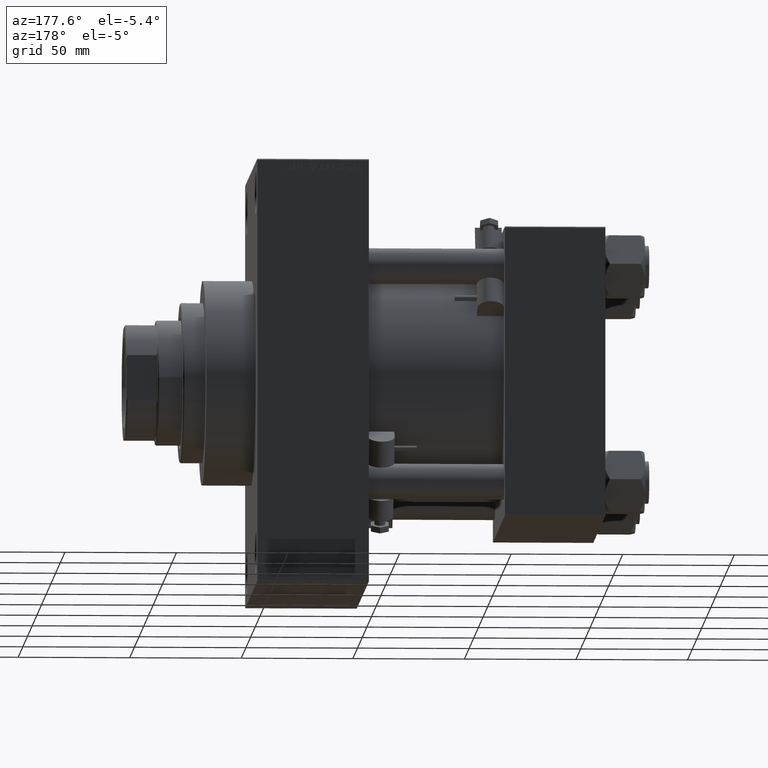
[diagram: clean part render]
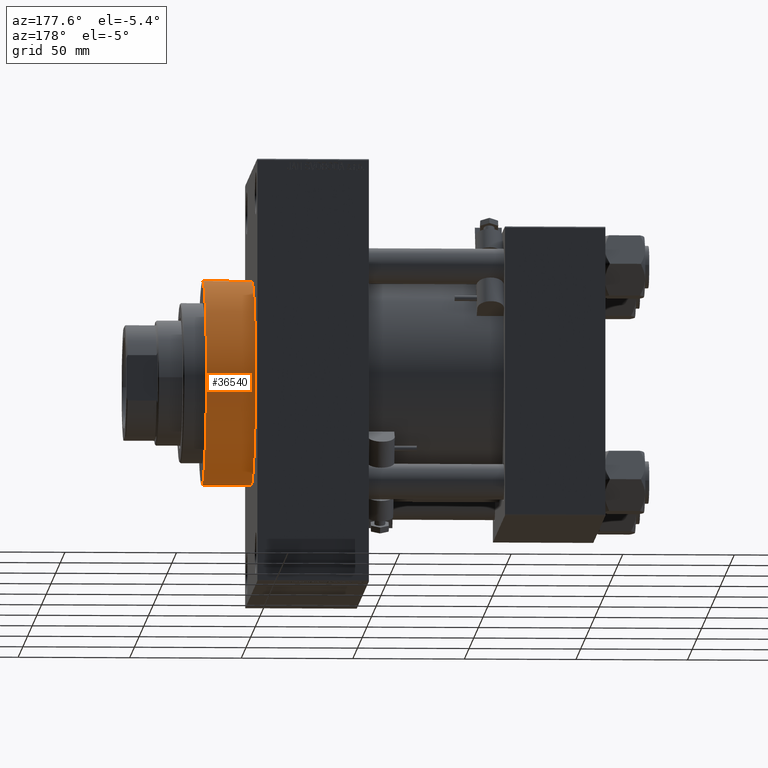
[diagram: same view with one face highlighted and labeled with its STEP entity id]
A machine part, auxiliary view. The second image highlights one B-rep face of the part: STEP entity #36540.
In plain terms, the highlighted cylindrical surface (partial cylindrical patch) has radius 46 mm, axis along (-1, -0, -0).
Its self-contained STEP definition (entity closure, byte-faithful):
#2691 = ORIENTED_EDGE ( 'NONE', *, *, #34720, .F. ) ;
#4949 = CYLINDRICAL_SURFACE ( 'NONE', #47408, 46.00000000000000000 ) ;
#6237 = AXIS2_PLACEMENT_3D ( 'NONE', #20297, #12880, #40215 ) ;
#7140 = CARTESIAN_POINT ( 'NONE',  ( 178.0000000000000000, 0.000000000000000000, 46.00000000000000000 ) ) ;
#7583 = CIRCLE ( 'NONE', #10755, 46.00000000000000000 ) ;
#8102 = ORIENTED_EDGE ( 'NONE', *, *, #24219, .T. ) ;
#10755 = AXIS2_PLACEMENT_3D ( 'NONE', #41945, #46356, #27594 ) ;
#11558 = CARTESIAN_POINT ( 'NONE',  ( 156.0000000000000000, 5.633375276077824704E-15, -46.00000000000000000 ) ) ;
#11784 = VECTOR ( 'NONE', #20654, 1000.000000000000000 ) ;
#11819 = DIRECTION ( 'NONE',  ( -1.000000000000000000, -0.000000000000000000, -0.000000000000000000 ) ) ;
#12366 = DIRECTION ( 'NONE',  ( 0.000000000000000000, 0.000000000000000000, 1.000000000000000000 ) ) ;
#12543 = VERTEX_POINT ( 'NONE', #44198 ) ;
#12834 = DIRECTION ( 'NONE',  ( -1.000000000000000000, -0.000000000000000000, -0.000000000000000000 ) ) ;
#12880 = DIRECTION ( 'NONE',  ( 1.000000000000000000, 0.000000000000000000, 0.000000000000000000 ) ) ;
#14881 = VECTOR ( 'NONE', #11819, 1000.000000000000000 ) ;
#15533 = LINE ( 'NONE', #41703, #14881 ) ;
#20096 = VERTEX_POINT ( 'NONE', #7140 ) ;
#20297 = CARTESIAN_POINT ( 'NONE',  ( 178.0000000000000000, 0.000000000000000000, 0.000000000000000000 ) ) ;
#20654 = DIRECTION ( 'NONE',  ( -1.000000000000000000, -0.000000000000000000, -0.000000000000000000 ) ) ;
#24219 = EDGE_CURVE ( 'NONE', #48540, #12543, #7583, .T. ) ;
#27594 = DIRECTION ( 'NONE',  ( 0.000000000000000000, 0.000000000000000000, -1.000000000000000000 ) ) ;
#29961 = ORIENTED_EDGE ( 'NONE', *, *, #33426, .T. ) ;
#33426 = EDGE_CURVE ( 'NONE', #38599, #48540, #15533, .T. ) ;
#33993 = CARTESIAN_POINT ( 'NONE',  ( 178.0000000000000000, 5.633375276077824704E-15, -46.00000000000000000 ) ) ;
#34720 = EDGE_CURVE ( 'NONE', #20096, #12543, #37970, .T. ) ;
#35262 = EDGE_CURVE ( 'NONE', #38599, #20096, #43306, .T. ) ;
#35952 = CARTESIAN_POINT ( 'NONE',  ( 178.0000000000000000, 0.000000000000000000, 46.00000000000000000 ) ) ;
#36540 = ADVANCED_FACE ( 'NONE', ( #46653 ), #4949, .T. ) ;
#37970 = LINE ( 'NONE', #35952, #11784 ) ;
#38599 = VERTEX_POINT ( 'NONE', #33993 ) ;
#40215 = DIRECTION ( 'NONE',  ( 0.000000000000000000, 0.000000000000000000, -1.000000000000000000 ) ) ;
#41703 = CARTESIAN_POINT ( 'NONE',  ( 178.0000000000000000, 5.633375276077824704E-15, -46.00000000000000000 ) ) ;
#41945 = CARTESIAN_POINT ( 'NONE',  ( 156.0000000000000000, 0.000000000000000000, 0.000000000000000000 ) ) ;
#42441 = ORIENTED_EDGE ( 'NONE', *, *, #35262, .F. ) ;
#42962 = CARTESIAN_POINT ( 'NONE',  ( 178.0000000000000000, 0.000000000000000000, 0.000000000000000000 ) ) ;
#43306 = CIRCLE ( 'NONE', #6237, 46.00000000000000000 ) ;
#44198 = CARTESIAN_POINT ( 'NONE',  ( 156.0000000000000000, 0.000000000000000000, 46.00000000000000000 ) ) ;
#46356 = DIRECTION ( 'NONE',  ( 1.000000000000000000, 0.000000000000000000, 0.000000000000000000 ) ) ;
#46653 = FACE_OUTER_BOUND ( 'NONE', #48686, .T. ) ;
#47408 = AXIS2_PLACEMENT_3D ( 'NONE', #42962, #12834, #12366 ) ;
#48540 = VERTEX_POINT ( 'NONE', #11558 ) ;
#48686 = EDGE_LOOP ( 'NONE', ( #42441, #29961, #8102, #2691 ) ) ;